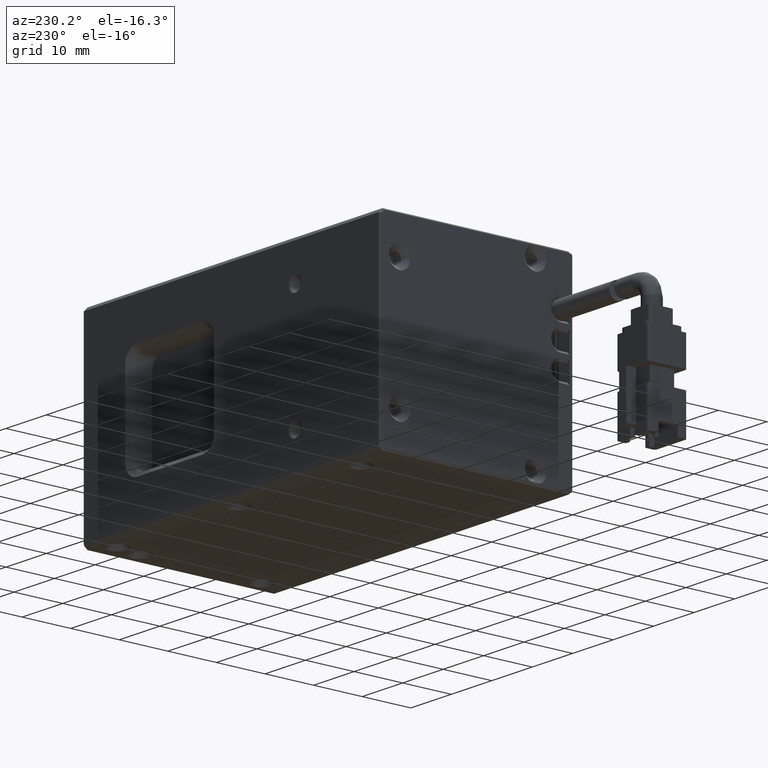
[diagram: clean part render]
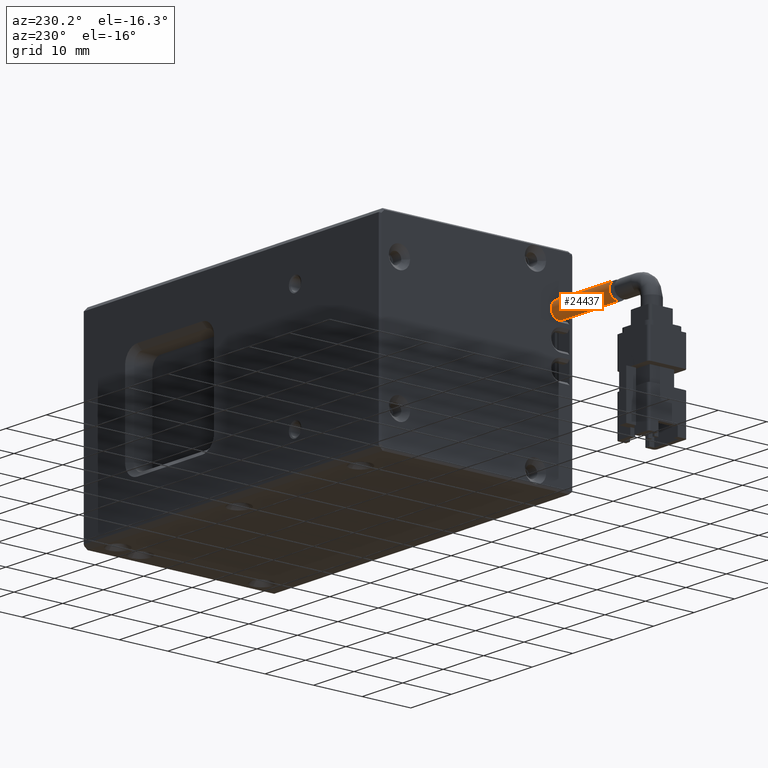
[diagram: same view with one face highlighted and labeled with its STEP entity id]
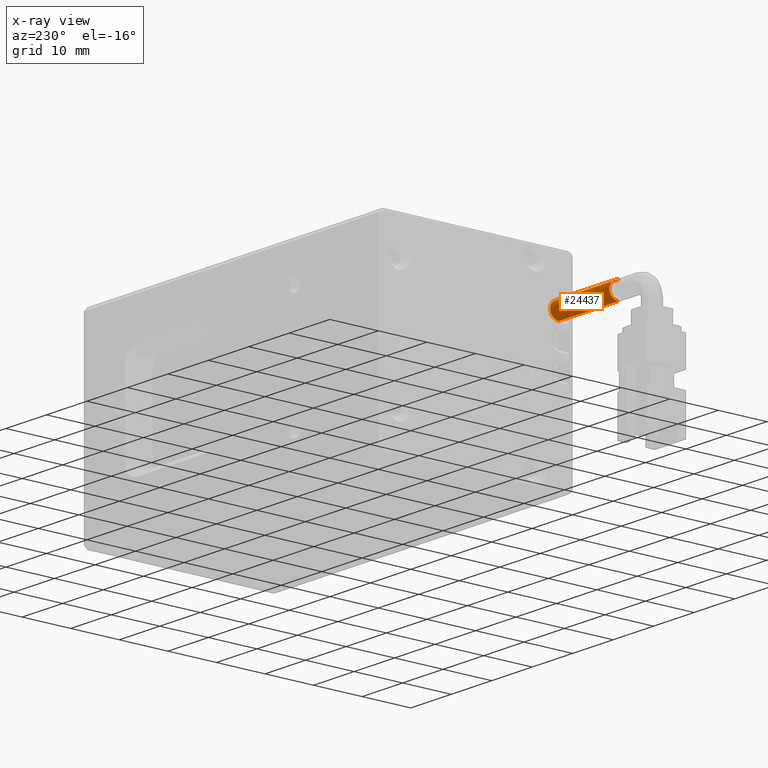
[diagram: x-ray of the same camera — body ghosted, the highlighted face saturated]
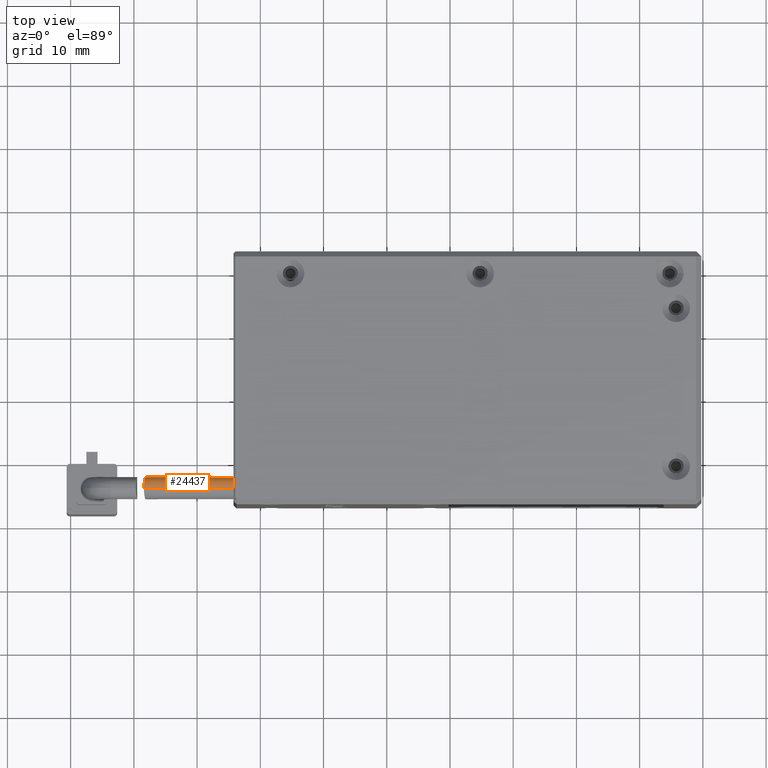
[diagram: same view with one face highlighted and labeled with its STEP entity id]
A machine part, auxiliary view. The second image highlights one B-rep face of the part: STEP entity #24437.
The next image is the same camera in x-ray: the body ghosted, the highlighted face saturated — about 0% of this face is hidden behind the body in this view.
A second angle (top view) of the same face is appended — the face is thin or edge-on in the first view.
In plain terms, the highlighted cylindrical surface (edge-blend (fillet) strip) has radius 1.75 mm, axis along (1, -0, 0).
Its self-contained STEP definition (entity closure, byte-faithful):
#6 = AXIS2_PLACEMENT_3D ( 'NONE', #4974, #23517, #7657 ) ;
#1710 = CARTESIAN_POINT ( 'NONE',  ( -58.22906760562877100, -2.721062593896712100, 28.92250205533159100 ) ) ;
#1826 = CARTESIAN_POINT ( 'NONE',  ( -58.37860451522381300, -3.340512151029134900, 31.57167475215998900 ) ) ;
#1965 = EDGE_CURVE ( 'NONE', #5272, #11461, #12440, .T. ) ;
#2234 = CYLINDRICAL_SURFACE ( 'NONE', #6214, 1.749999999999998000 ) ;
#2505 = ORIENTED_EDGE ( 'NONE', *, *, #2971, .F. ) ;
#2971 = EDGE_CURVE ( 'NONE', #5272, #13149, #4750, .T. ) ;
#3814 = ORIENTED_EDGE ( 'NONE', *, *, #9261, .T. ) ;
#4332 = CARTESIAN_POINT ( 'NONE',  ( -58.17771392161786500, -2.415136934332507800, 29.53875052921506800 ) ) ;
#4433 = CARTESIAN_POINT ( 'NONE',  ( -58.41368922833111600, -3.886517608140247900, 31.75000000000954300 ) ) ;
#4750 = LINE ( 'NONE', #34231, #32164 ) ;
#4974 = CARTESIAN_POINT ( 'NONE',  ( -43.63284929583384300, -4.118613977539930600, 30.00000000000953900 ) ) ;
#5272 = VERTEX_POINT ( 'NONE', #18442 ) ;
#6214 = AXIS2_PLACEMENT_3D ( 'NONE', #20376, #25597, #31031 ) ;
#6898 = CARTESIAN_POINT ( 'NONE',  ( -58.37656873499414400, -4.002537710552412700, 28.25000000000954600 ) ) ;
#7006 = CARTESIAN_POINT ( 'NONE',  ( -58.18881946465274500, -2.368556474784463200, 30.11371947442062300 ) ) ;
#7657 = DIRECTION ( 'NONE',  ( 0.0000000000000000000, 0.0000000000000000000, -1.000000000000000000 ) ) ;
#8638 = EDGE_LOOP ( 'NONE', ( #28484, #11905, #3814, #2505 ) ) ;
#9261 = EDGE_CURVE ( 'NONE', #12698, #13149, #23712, .T. ) ;
#9529 = CARTESIAN_POINT ( 'NONE',  ( -58.37656873499413700, -4.118613977539928900, 28.25000000000954300 ) ) ;
#9644 = CARTESIAN_POINT ( 'NONE',  ( -58.21425249015510400, -2.424712852106644800, 30.45416755124101700 ) ) ;
#11231 = CARTESIAN_POINT ( 'NONE',  ( -63.63284929583379300, -4.118613977539928900, 31.75000000000953500 ) ) ;
#11461 = VERTEX_POINT ( 'NONE', #11462 ) ;
#11462 = CARTESIAN_POINT ( 'NONE',  ( -58.41368922833112300, -4.118613977539929700, 31.75000000000954300 ) ) ;
#11905 = ORIENTED_EDGE ( 'NONE', *, *, #17710, .T. ) ;
#12183 = CARTESIAN_POINT ( 'NONE',  ( -58.35059468708593000, -3.553162423599037100, 28.33991944950720300 ) ) ;
#12295 = CARTESIAN_POINT ( 'NONE',  ( -58.26239400193495000, -2.589570830775342900, 30.88164290911110000 ) ) ;
#12440 = B_SPLINE_CURVE_WITH_KNOTS ( 'NONE', 3,
 ( #9529, #6898, #25453, #28135, #12183, #30778, #14909, #33470, #17577, #1710, #20230, #4332, #22867, #7006, #25570, #9644, #28245, #12295, #30893, #15018, #33592, #17685, #1826, #20335, #4433, #22984 ),
 .UNSPECIFIED., .F., .F.,
 ( 4, 2, 2, 2, 2, 2, 2, 2, 2, 2, 2, 2, 4 ),
 ( 0.005490571999675025600, 0.005833718808239112700, 0.006176865616803198900, 0.006520012425367285200, 0.006863159233931372300, 0.007549452851059537000, 0.008235746468187702500, 0.008578893276751785300, 0.008922040085315868100, 0.009608333702444033600, 0.009951480511008116400, 0.01029462731957219900, 0.01098092093670037500 ),
 .UNSPECIFIED. ) ;
#12698 = VERTEX_POINT ( 'NONE', #34372 ) ;
#13149 = VERTEX_POINT ( 'NONE', #31601 ) ;
#13921 = DIRECTION ( 'NONE',  ( 1.000000000000000000, -7.511771070445245000E-017, 1.110223024625156000E-016 ) ) ;
#14909 = CARTESIAN_POINT ( 'NONE',  ( -58.31411461971295300, -3.241512402697540400, 28.48137794374708400 ) ) ;
#15018 = CARTESIAN_POINT ( 'NONE',  ( -58.33210375122852300, -2.960871537340852700, 31.31730249409939800 ) ) ;
#15631 = DIRECTION ( 'NONE',  ( 1.000000000000000000, -7.511771070445245000E-017, 1.110223024625156000E-016 ) ) ;
#17577 = CARTESIAN_POINT ( 'NONE',  ( -58.27090828849594600, -2.962250857023716500, 28.68157773980928100 ) ) ;
#17685 = CARTESIAN_POINT ( 'NONE',  ( -58.36811085193971100, -3.237935655440460400, 31.51653809685102600 ) ) ;
#17710 = EDGE_CURVE ( 'NONE', #11461, #12698, #30175, .T. ) ;
#18375 = FACE_OUTER_BOUND ( 'NONE', #8638, .T. ) ;
#18442 = CARTESIAN_POINT ( 'NONE',  ( -58.37656873499413700, -4.118613977539928900, 28.25000000000954300 ) ) ;
#20230 = CARTESIAN_POINT ( 'NONE',  ( -58.20440748815801200, -2.590404724057966800, 29.11729869797413200 ) ) ;
#20335 = CARTESIAN_POINT ( 'NONE',  ( -58.40415010107853500, -3.657567174366422000, 31.70362899751667000 ) ) ;
#20376 = CARTESIAN_POINT ( 'NONE',  ( -63.63284929583379300, -4.118613977539928900, 30.00000000000953900 ) ) ;
#22867 = CARTESIAN_POINT ( 'NONE',  ( -58.17546873959613400, -2.368729649055095100, 29.76991661476127900 ) ) ;
#22984 = CARTESIAN_POINT ( 'NONE',  ( -58.41368922833112300, -4.118613977539929700, 31.75000000000954300 ) ) ;
#23130 = VECTOR ( 'NONE', #13921, 1000.000000000000000 ) ;
#23517 = DIRECTION ( 'NONE',  ( -1.000000000000000000, 7.511771070445245000E-017, -1.110223024625156000E-016 ) ) ;
#23712 = CIRCLE ( 'NONE', #6, 1.749999999999998000 ) ;
#24437 = ADVANCED_FACE ( 'NONE', ( #18375 ), #2234, .T. ) ;
#25453 = CARTESIAN_POINT ( 'NONE',  ( -58.37311142066389600, -3.888530506213401700, 28.26143297391719100 ) ) ;
#25570 = CARTESIAN_POINT ( 'NONE',  ( -58.19602304168775900, -2.380023053715256700, 30.22993648456608500 ) ) ;
#25597 = DIRECTION ( 'NONE',  ( 1.000000000000000000, -7.511771070445245000E-017, 1.110223024625156000E-016 ) ) ;
#28135 = CARTESIAN_POINT ( 'NONE',  ( -58.36019883982276500, -3.664434340301232100, 28.30610668426885500 ) ) ;
#28245 = CARTESIAN_POINT ( 'NONE',  ( -58.22528587286714000, -2.457768887184122300, 30.56328090399991700 ) ) ;
#28484 = ORIENTED_EDGE ( 'NONE', *, *, #1965, .T. ) ;
#30175 = LINE ( 'NONE', #11231, #23130 ) ;
#30778 = CARTESIAN_POINT ( 'NONE',  ( -58.32750791485536000, -3.341733141571162400, 28.42772169744514700 ) ) ;
#30893 = CARTESIAN_POINT ( 'NONE',  ( -58.29147753220220100, -2.717839836674150500, 31.07375298900444700 ) ) ;
#31031 = DIRECTION ( 'NONE',  ( 0.0000000000000000000, 0.0000000000000000000, -1.000000000000000000 ) ) ;
#31601 = CARTESIAN_POINT ( 'NONE',  ( -43.63284929583384300, -4.118613977539930600, 28.25000000000954300 ) ) ;
#32164 = VECTOR ( 'NONE', #15631, 1000.000000000000000 ) ;
#33470 = CARTESIAN_POINT ( 'NONE',  ( -58.28582176710047200, -3.051738861426385600, 28.60813161220288200 ) ) ;
#33592 = CARTESIAN_POINT ( 'NONE',  ( -58.34490175777750000, -3.048726606429890600, 31.38954061450297000 ) ) ;
#34231 = CARTESIAN_POINT ( 'NONE',  ( -63.63284929583379300, -4.118613977539928900, 28.25000000000954300 ) ) ;
#34372 = CARTESIAN_POINT ( 'NONE',  ( -43.63284929583384300, -4.118613977539929700, 31.75000000000953500 ) ) ;